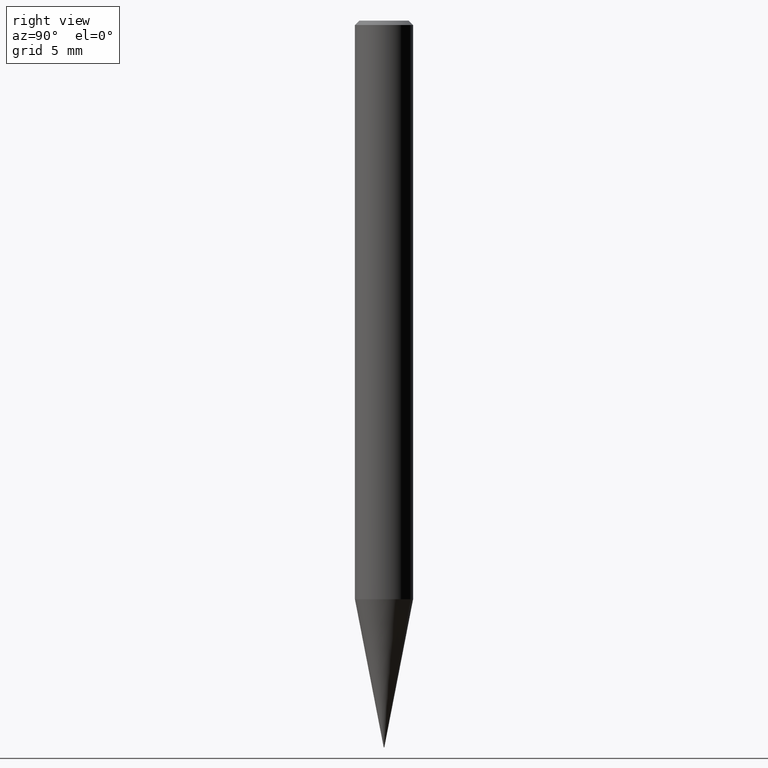
[diagram: clean part render]
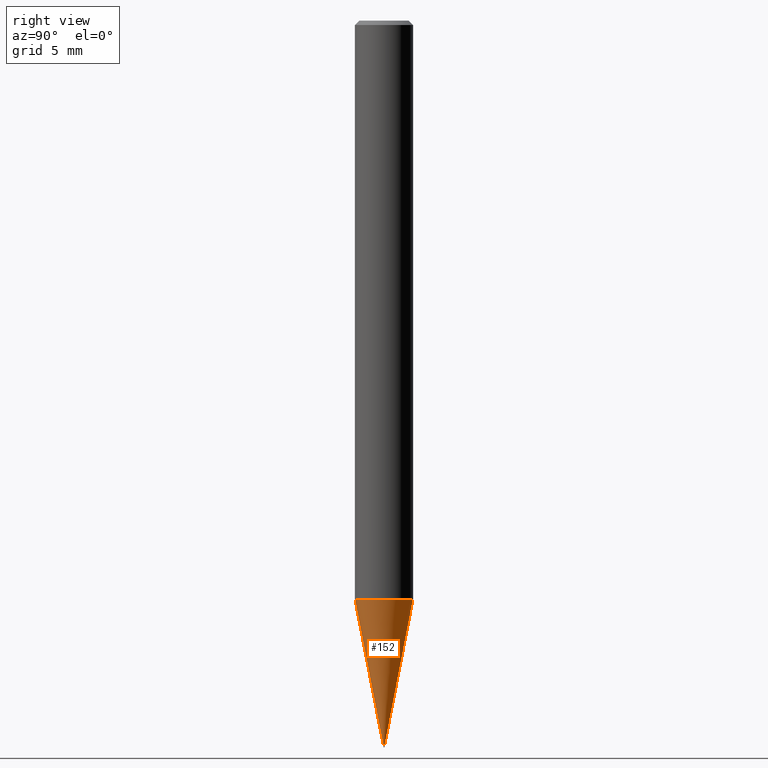
[diagram: same view with one face highlighted and labeled with its STEP entity id]
A machine part, right view. The second image highlights one B-rep face of the part: STEP entity #152.
In plain terms, the highlighted conical surface has half-angle 11 deg.
Its self-contained STEP definition (entity closure, byte-faithful):
#92=EDGE_CURVE('',#172,#120,#217,.T.);
#104=VERTEX_POINT('',#232);
#120=VERTEX_POINT('',#248);
#152=ADVANCED_FACE('',(#287),#288,.T.);
#158=EDGE_CURVE('',#104,#172,#295,.T.);
#166=VERTEX_POINT('',#304);
#172=VERTEX_POINT('',#311);
#186=EDGE_CURVE('',#166,#120,#326,.T.);
#190=EDGE_CURVE('',#166,#104,#330,.T.);
#217=LINE('',#354,#355);
#232=CARTESIAN_POINT('',(0.0,0.02995,-49.94));
#248=CARTESIAN_POINT('',(2.44915147732706E-016,-1.99995,-39.805));
#287=FACE_OUTER_BOUND('',#442,.T.);
#288=CONICAL_SURFACE('',#443,1.01495,0.191981993208078);
#295=CIRCLE('',#451,0.02995);
#304=CARTESIAN_POINT('',(0.0,1.99995,-39.805));
#311=CARTESIAN_POINT('',(3.667696029698E-018,-0.02995,-49.94));
#326=CIRCLE('',#484,1.99995);
#330=LINE('',#490,#491);
#354=CARTESIAN_POINT('',(1.24291421881202E-016,-1.01495,-44.8725));
#355=VECTOR('',#500,1.0);
#442=EDGE_LOOP('',(#594,#595,#596,#597));
#443=AXIS2_PLACEMENT_3D('',#598,#599,#600);
#451=AXIS2_PLACEMENT_3D('',#607,#608,#609);
#484=AXIS2_PLACEMENT_3D('',#643,#644,#645);
#490=CARTESIAN_POINT('',(-1.24291421881202E-016,1.01495,-44.8725));
#491=VECTOR('',#649,1.0);
#500=DIRECTION('',(2.33660829788375E-017,-0.190804848479715,0.981627989513661));
#594=ORIENTED_EDGE('',*,*,#190,.F.);
#595=ORIENTED_EDGE('',*,*,#186,.T.);
#596=ORIENTED_EDGE('',*,*,#92,.F.);
#597=ORIENTED_EDGE('',*,*,#158,.F.);
#598=CARTESIAN_POINT('',(0.0,0.0,-44.8725));
#599=DIRECTION('',(-0.0,-0.0,1.0));
#600=DIRECTION('',(0.0,1.0,0.0));
#607=CARTESIAN_POINT('',(0.0,0.0,-49.94));
#608=DIRECTION('',(0.0,0.0,-1.0));
#609=DIRECTION('',(0.0,1.0,0.0));
#643=CARTESIAN_POINT('',(0.0,0.0,-39.805));
#644=DIRECTION('',(0.0,0.0,-1.0));
#645=DIRECTION('',(0.0,1.0,0.0));
#649=DIRECTION('',(2.33660829788375E-017,-0.190804848479715,-0.981627989513661));